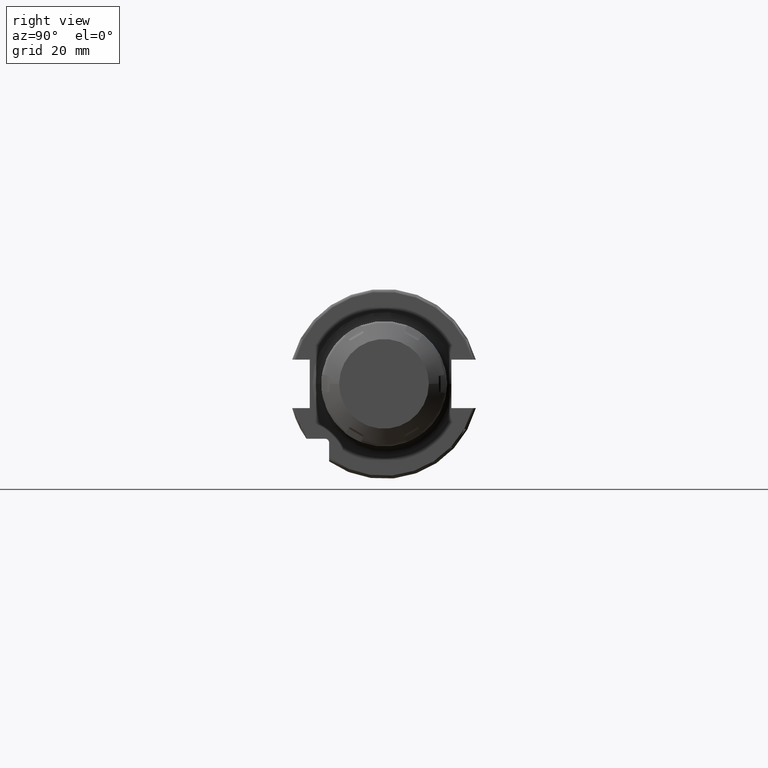
[diagram: clean part render]
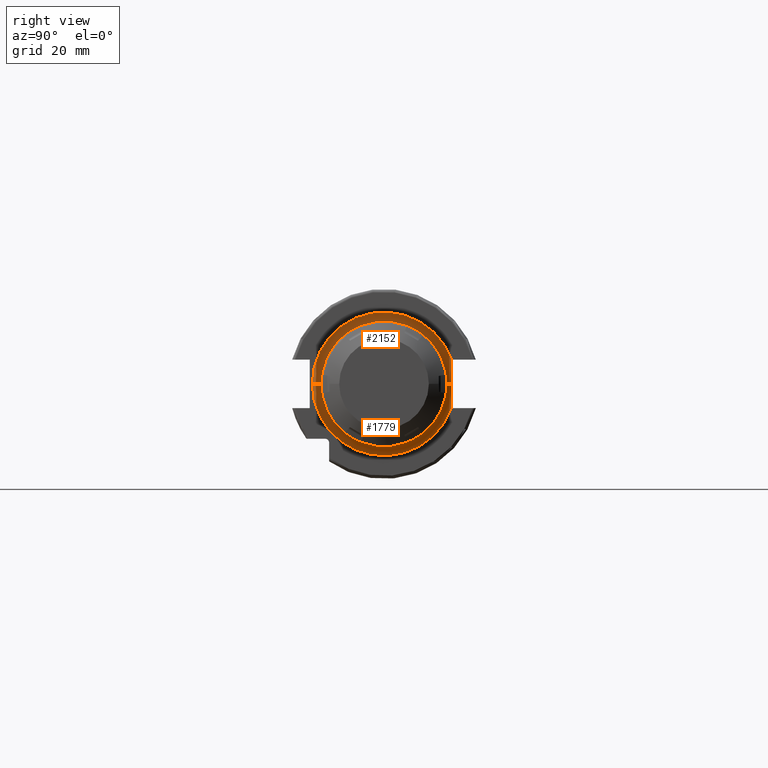
[diagram: same view with one multi-face feature highlighted, each face labeled with its STEP entity id]
A machine part, right view. The highlighted faces form ONE feature: a constant-radius fillet chain: 2 tangent blend faces with common blend radius 3 mm. The faces share edges in the B-rep.
Their STEP definitions:
[1] entity #2152 (Torus):
#136=CARTESIAN_POINT('',(2.205E1,-2.4E1,2.628175455044E-13));
#137=DIRECTION('',(0.E0,-1.095044194210E-14,-1.E0));
#138=DIRECTION('',(-1.E0,2.013204417987E-14,0.E0));
#139=AXIS2_PLACEMENT_3D('',#136,#137,#138);
#182=CARTESIAN_POINT('',(1.905E1,0.E0,0.E0));
#183=DIRECTION('',(1.E0,0.E0,0.E0));
#184=DIRECTION('',(0.E0,9.413257058715E-1,3.374995043931E-1));
#185=AXIS2_PLACEMENT_3D('',#182,#183,#184);
#503=CARTESIAN_POINT('',(1.905025814952E1,2.255E1,8.1E0));
#504=CARTESIAN_POINT('',(1.905017199877E1,2.255697738962E1,8.1E0));
#505=CARTESIAN_POINT('',(1.905004292541E1,2.257091073184E1,8.100018375794E0));
#506=CARTESIAN_POINT('',(1.905E1,2.258487816446E1,8.099963248411E0));
#507=CARTESIAN_POINT('',(1.905E1,2.259183833297E1,8.099963248411E0));
#509=CARTESIAN_POINT('',(1.942369078425E1,2.255E1,1.226450482409E-3));
#510=CARTESIAN_POINT('',(1.942367225948E1,2.255E1,6.181442007020E-1));
#511=CARTESIAN_POINT('',(1.939456478734E1,2.255E1,1.891520502561E0));
#512=CARTESIAN_POINT('',(1.926753848450E1,2.255E1,3.917129716921E0));
#513=CARTESIAN_POINT('',(1.910969555687E1,2.255E1,6.067611011073E0));
#514=CARTESIAN_POINT('',(1.905324688932E1,2.255E1,7.426118515843E0));
#515=CARTESIAN_POINT('',(1.905025814952E1,2.255E1,8.1E0));
#517=CARTESIAN_POINT('',(2.205E1,2.399999996450E1,1.305313150096E-3));
#518=DIRECTION('',(0.E0,-5.438804792066E-5,9.999999985210E-1));
#519=DIRECTION('',(-8.754364052492E-1,-4.833333215011E-1,-2.628755589033E-5));
#520=AXIS2_PLACEMENT_3D('',#517,#518,#519);
#527=CARTESIAN_POINT('',(2.205E1,0.E0,0.E0));
#528=DIRECTION('',(1.E0,0.E0,0.E0));
#529=DIRECTION('',(0.E0,1.E0,0.E0));
#530=AXIS2_PLACEMENT_3D('',#527,#528,#529);
#1501=CARTESIAN_POINT('',(1.905E1,-2.4E1,0.E0));
#1503=VERTEX_POINT('',#1501);
#1505=CARTESIAN_POINT('',(2.205E1,-2.1E1,0.E0));
#1506=CARTESIAN_POINT('',(2.205E1,2.1E1,0.E0));
#1507=VERTEX_POINT('',#1505);
#1508=VERTEX_POINT('',#1506);
#1509=CARTESIAN_POINT('',(1.905E1,2.259181694092E1,8.099988105433E0));
#1510=VERTEX_POINT('',#1509);
#1528=VERTEX_POINT('',#509);
#1529=VERTEX_POINT('',#515);
#2138=CARTESIAN_POINT('',(2.205E1,0.E0,0.E0));
#2139=DIRECTION('',(1.E0,0.E0,0.E0));
#2140=DIRECTION('',(0.E0,1.485959642860E-3,-9.999988959614E-1));
#2141=AXIS2_PLACEMENT_3D('',#2138,#2139,#2140);
#2142=TOROIDAL_SURFACE('',#2141,2.4E1,3.E0);
#2143=ORIENTED_EDGE('',*,*,#1807,.F.);
#2144=ORIENTED_EDGE('',*,*,#2109,.F.);
#2145=ORIENTED_EDGE('',*,*,#1711,.F.);
#2146=ORIENTED_EDGE('',*,*,#1773,.T.);
#2148=ORIENTED_EDGE('',*,*,#2147,.T.);
#2149=ORIENTED_EDGE('',*,*,#1769,.F.);
#2150=EDGE_LOOP('',(#2143,#2144,#2145,#2146,#2148,#2149));
#2151=FACE_OUTER_BOUND('',#2150,.F.);
#2152=ADVANCED_FACE('',(#2151),#2142,.F.);
#140=CIRCLE('',#139,3.E0);
#186=CIRCLE('',#185,2.4E1);
#508=B_SPLINE_CURVE_WITH_KNOTS('',3,(#503,#504,#505,#506,#507),.UNSPECIFIED.,
.F.,.F.,(4,1,4),(0.E0,5.E-1,1.E0),.UNSPECIFIED.);
#516=B_SPLINE_CURVE_WITH_KNOTS('',3,(#509,#510,#511,#512,#513,#514,#515),
.UNSPECIFIED.,.F.,.F.,(4,1,1,1,4),(0.E0,2.5E-1,5.E-1,7.5E-1,1.E0),
.UNSPECIFIED.);
#521=CIRCLE('',#520,3.E0);
#531=CIRCLE('',#530,2.1E1);
#1711=EDGE_CURVE('',#1528,#1529,#516,.T.);
#1769=EDGE_CURVE('',#1503,#1507,#140,.T.);
#1773=EDGE_CURVE('',#1528,#1508,#521,.T.);
#1807=EDGE_CURVE('',#1510,#1503,#186,.T.);
#2109=EDGE_CURVE('',#1529,#1510,#508,.T.);
#2147=EDGE_CURVE('',#1508,#1507,#531,.T.);
[2] entity #1779 (Torus):
#126=CARTESIAN_POINT('',(1.905E1,2.259186509537E1,-8.099988110425E0));
#127=CARTESIAN_POINT('',(1.905E1,2.258489601846E1,-8.099988110425E0));
#128=CARTESIAN_POINT('',(1.905004303537E1,2.257087953349E1,-8.100005944787E0));
#129=CARTESIAN_POINT('',(1.905017210875E1,2.255696848189E1,-8.1E0));
#130=CARTESIAN_POINT('',(1.905025814952E1,2.255E1,-8.1E0));
#136=CARTESIAN_POINT('',(2.205E1,-2.4E1,2.628175455044E-13));
#137=DIRECTION('',(0.E0,-1.095044194210E-14,-1.E0));
#138=DIRECTION('',(-1.E0,2.013204417987E-14,0.E0));
#139=AXIS2_PLACEMENT_3D('',#136,#137,#138);
#141=CARTESIAN_POINT('',(1.942369078425E1,2.255E1,1.226450482409E-3));
#142=CARTESIAN_POINT('',(1.942370930538E1,2.255E1,-6.155697795352E-1));
#143=CARTESIAN_POINT('',(1.939468133293E1,2.255E1,-1.888910021226E0));
#144=CARTESIAN_POINT('',(1.926777387901E1,2.255E1,-3.913981292115E0));
#145=CARTESIAN_POINT('',(1.910973653284E1,2.255E1,-6.066750307662E0));
#146=CARTESIAN_POINT('',(1.905324815844E1,2.255E1,-7.425832361967E0));
#147=CARTESIAN_POINT('',(1.905025814952E1,2.255E1,-8.1E0));
#149=CARTESIAN_POINT('',(1.905E1,0.E0,0.E0));
#150=DIRECTION('',(1.E0,0.E0,0.E0));
#151=DIRECTION('',(0.E0,-1.E0,0.E0));
#152=AXIS2_PLACEMENT_3D('',#149,#150,#151);
#509=CARTESIAN_POINT('',(1.942369078425E1,2.255E1,1.226450482409E-3));
#517=CARTESIAN_POINT('',(2.205E1,2.399999996450E1,1.305313150096E-3));
#518=DIRECTION('',(0.E0,-5.438804792066E-5,9.999999985210E-1));
#519=DIRECTION('',(-8.754364052492E-1,-4.833333215011E-1,-2.628755589033E-5));
#520=AXIS2_PLACEMENT_3D('',#517,#518,#519);
#551=CARTESIAN_POINT('',(2.205E1,0.E0,0.E0));
#552=DIRECTION('',(1.E0,0.E0,0.E0));
#553=DIRECTION('',(0.E0,-1.E0,0.E0));
#554=AXIS2_PLACEMENT_3D('',#551,#552,#553);
#1501=CARTESIAN_POINT('',(1.905E1,-2.4E1,0.E0));
#1502=CARTESIAN_POINT('',(1.905E1,2.259182913203E1,-8.099954102898E0));
#1503=VERTEX_POINT('',#1501);
#1504=VERTEX_POINT('',#1502);
#1505=CARTESIAN_POINT('',(2.205E1,-2.1E1,0.E0));
#1506=CARTESIAN_POINT('',(2.205E1,2.1E1,0.E0));
#1507=VERTEX_POINT('',#1505);
#1508=VERTEX_POINT('',#1506);
#1528=VERTEX_POINT('',#509);
#1530=VERTEX_POINT('',#147);
#1762=CARTESIAN_POINT('',(2.205E1,0.E0,0.E0));
#1763=DIRECTION('',(1.E0,0.E0,0.E0));
#1764=DIRECTION('',(0.E0,-9.999731921857E-1,7.322220282676E-3));
#1765=AXIS2_PLACEMENT_3D('',#1762,#1763,#1764);
#1766=TOROIDAL_SURFACE('',#1765,2.4E1,3.E0);
#1768=ORIENTED_EDGE('',*,*,#1767,.F.);
#1770=ORIENTED_EDGE('',*,*,#1769,.T.);
#1772=ORIENTED_EDGE('',*,*,#1771,.T.);
#1774=ORIENTED_EDGE('',*,*,#1773,.F.);
#1775=ORIENTED_EDGE('',*,*,#1709,.T.);
#1776=ORIENTED_EDGE('',*,*,#1730,.F.);
#1777=EDGE_LOOP('',(#1768,#1770,#1772,#1774,#1775,#1776));
#1778=FACE_OUTER_BOUND('',#1777,.F.);
#1779=ADVANCED_FACE('',(#1778),#1766,.F.);
#131=B_SPLINE_CURVE_WITH_KNOTS('',3,(#126,#127,#128,#129,#130),.UNSPECIFIED.,
.F.,.F.,(4,1,4),(0.E0,5.E-1,1.E0),.UNSPECIFIED.);
#140=CIRCLE('',#139,3.E0);
#148=B_SPLINE_CURVE_WITH_KNOTS('',3,(#141,#142,#143,#144,#145,#146,#147),
.UNSPECIFIED.,.F.,.F.,(4,1,1,1,4),(0.E0,2.5E-1,5.E-1,7.5E-1,1.E0),
.UNSPECIFIED.);
#153=CIRCLE('',#152,2.4E1);
#521=CIRCLE('',#520,3.E0);
#555=CIRCLE('',#554,2.1E1);
#1709=EDGE_CURVE('',#1528,#1530,#148,.T.);
#1730=EDGE_CURVE('',#1504,#1530,#131,.T.);
#1767=EDGE_CURVE('',#1503,#1504,#153,.T.);
#1769=EDGE_CURVE('',#1503,#1507,#140,.T.);
#1771=EDGE_CURVE('',#1507,#1508,#555,.T.);
#1773=EDGE_CURVE('',#1528,#1508,#521,.T.);